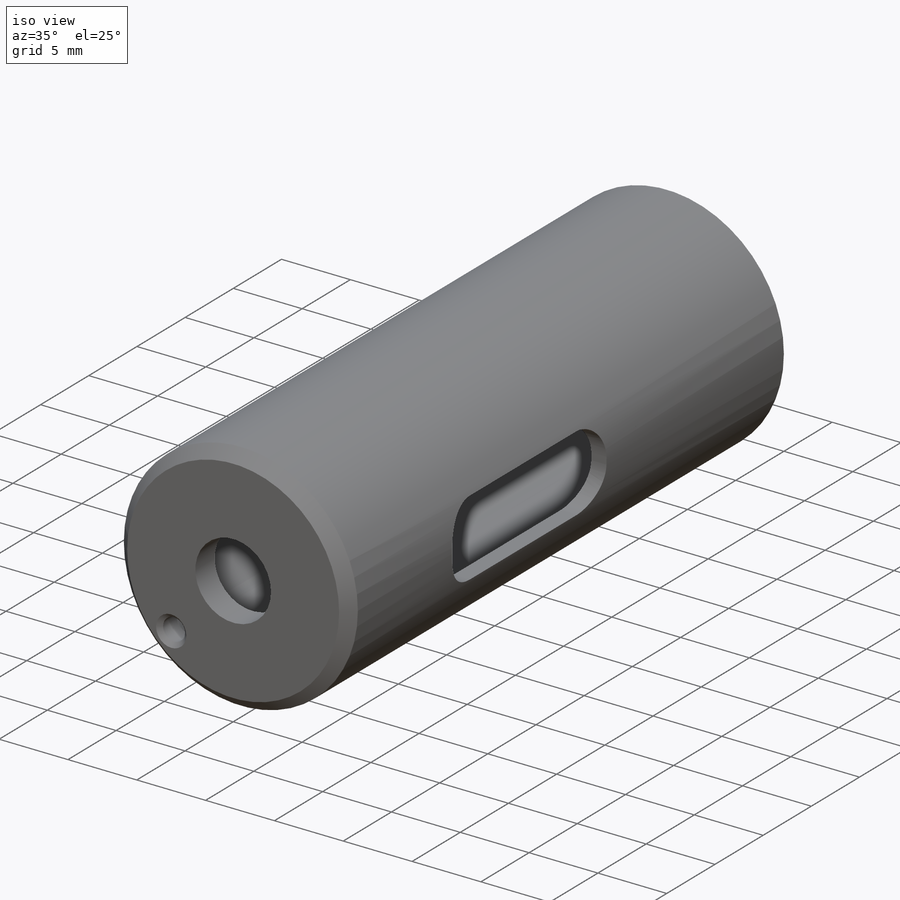
[diagram: iso view]
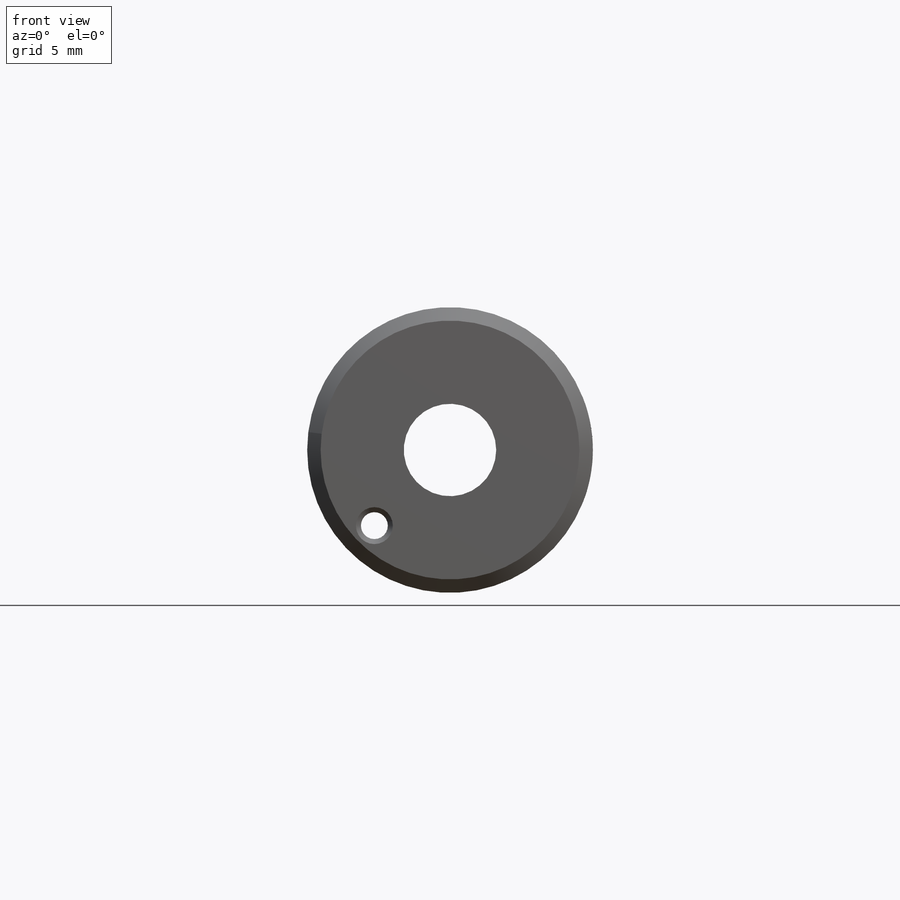
[diagram: front view]
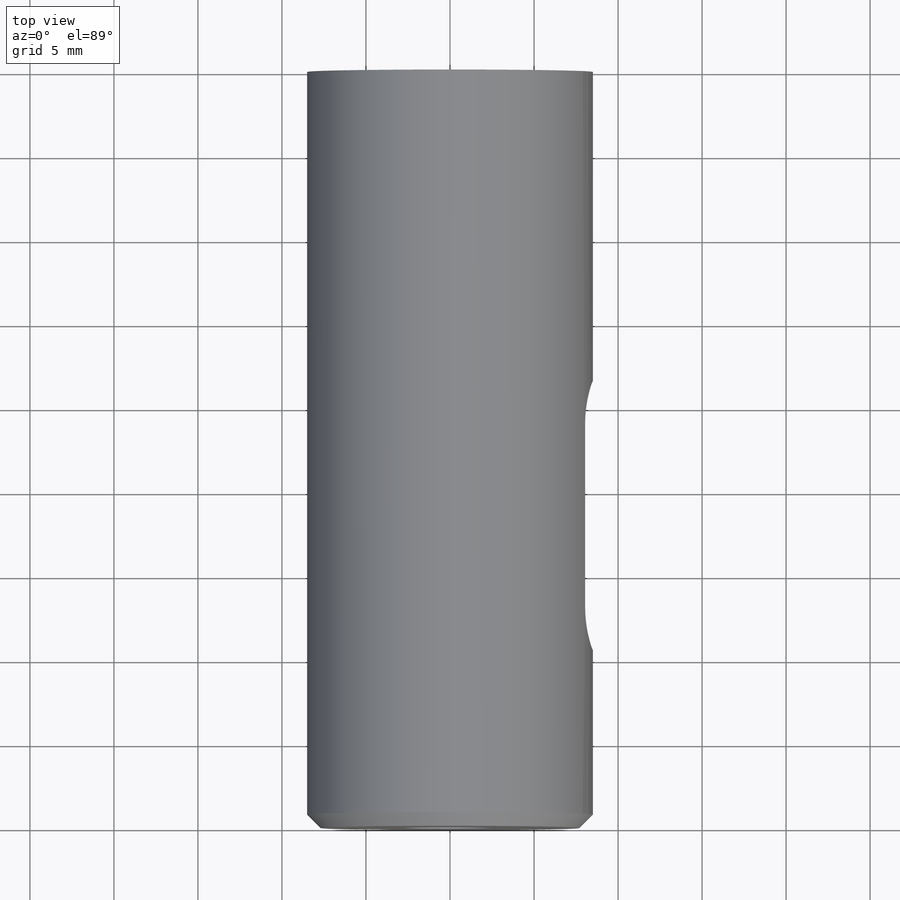
[diagram: top view]
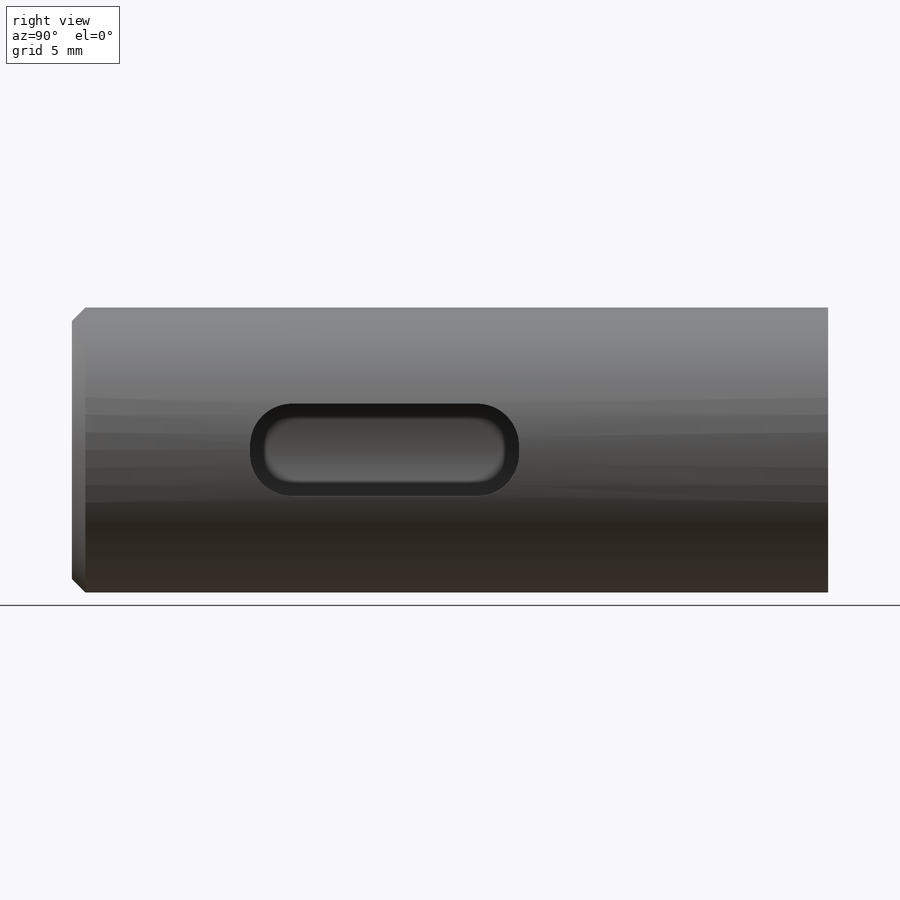
[diagram: right view]
SOLIDWORKS PART (.sldprt)
format: sldprt  version: not decoded by parser v0  size: 279,552 bytes
history: native  units: mm
features: chamfer x9, sketch x5, cut_extrude x3, material x1, revolve x1, hole x1, thread x1 (+14 scaffold rows collapsed)
feature tree (35):
  scaffold x14  (default folders/planes/origin — collapsed)
  material  "Простая углеродистая сталь"
  sketch  "Эскиз1"  dims[c1.D1=2.75mm c1.D2=2.0mm c1.D3=7.4mm c1.D4=8.5mm c1.D5=8.5mm c1.D6=9.5mm c1.D7=6.5mm c1.D8=1.5mm c1.D9=43.0mm c2.D2=45.0mm c2.D4=8.5mm]
  revolve  "Повернуть1"  Angle=360deg
  sketch  "Эскиз2"  dims[D5=2.5mm D1=5.5mm D2=16.0mm D3=2.75mm D4=18.4mm]
  cut_extrude  "Вырез-Вытянуть1"  [1 undecoded]
  chamfer  "Фаска1"  Distance=0.8mm Angle=45deg
  sketch  "Эскиз3"  dims[D1=1.6mm D2=43.0mm]
  cut_extrude  "Вырез-Вытянуть2"  Depth=0.7mm
  chamfer  "Material_Int"  [1 undecoded]
  chamfer  "Material_Ext"  [1 undecoded]
  chamfer  "Surface"  [1 undecoded]
  chamfer  "Material_Int"  [1 undecoded]
  chamfer  "Material_Ext"  [1 undecoded]
  cut_extrude  "OptisFaceAttribut_1"  [1 undecoded]
  chamfer  "Surface"  [1 undecoded]
  chamfer  "Material_Int"  [1 undecoded]
  chamfer  "Material_Ext"  [1 undecoded]
  hole  "Отверстие обработанное метчиком M2x0.41"  [1 undecoded]
  sketch  "Эскиз5"  dims[c1.D2=5.5mm c1.D1=5.5mm c2.D2=5.5mm c2.D1=4.5mm c3.D2=4.5mm]
  sketch  "Эскиз4"  dims[hole-wizard template sketch: 47 standard entries collapsed; hole parameters kept: c15.Глубина проходного сверла=2.0mm c15.Диаметр передней зенковки=2.2mm c15.D4=~3.666174mm c15.Угол передней зенковки=90.0deg c15.Диаметр задней зенковки=2.1mm c15.D6=~9.919017mm c15.Угол задней зенковки=90.0deg]
  thread  "Отверстие резьбы3"  Diameter=2mm  [1 undecoded]
decode coverage: 9 of 20 modeling features carry decoded parameters
note: ~ marks probable driven/reference dimensions
note: 12 parameter values undecoded
summary: no parameter record found for 11 features
note: suppression state not decoded; provenance and decode notes live in map.json
